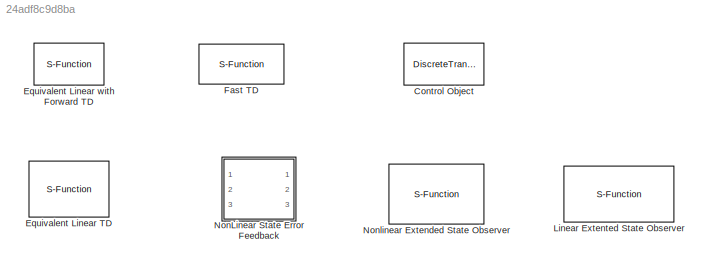
MODEL slx_24adf8c9d8ba
KIND model
CONFIG AbsTol = auto
CONFIG EnableMultiTasking = off
CONFIG FixedStep = auto
CONFIG MaxStep = auto
CONFIG MinStep = auto
CONFIG RelTol = 1e-3
CONFIG SampleTimeConstraint = Unconstrained
CONFIG Solver = VariableStepAuto
CONFIG SolverName = VariableStepAuto
CONFIG StartTime = 0.0
CONFIG StopTime = 10.0
BLOCK [DiscreteTransferFcn] Control Object
  Denominator = [ 1.0000   -0.9990]
  InputPortMap = u0
  Numerator = [0    0.03357]
  Ports = [1, 1]
BLOCK [S-Function] Equivalent Linear TD
  EnableBusSupport = off
  FunctionName = ELTD
  Parameters = 1,2,4
  Ports = [1, 1]
  SFcnIsStateOwnerBlock = off
  SFunctionDeploymentMode = off
BLOCK [S-Function] Equivalent Linear with Forward TD
  EnableBusSupport = off
  FunctionName = ELTD_F
  Parameters = 1,1,2,3
  Ports = [1, 1]
  SFcnIsStateOwnerBlock = off
  SFunctionDeploymentMode = off
BLOCK [S-Function] Fast TD
  EnableBusSupport = off
  FunctionName = FTD
  Parameters = 1E-3,1E-2,1000
  Ports = [1, 1]
  SFcnIsStateOwnerBlock = off
  SFunctionDeploymentMode = off
BLOCK [S-Function] Linear Extented State Observer
  EnableBusSupport = off
  FunctionName = LESO
  Ports = [1, 1]
  SFcnIsStateOwnerBlock = off
  SFunctionDeploymentMode = off
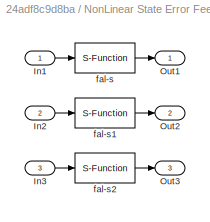
BLOCK [SubSystem] NonLinear State Error Feedback
  Ports = [3, 3]
  RequestExecContextInheritance = off
BLOCK [Inport] NonLinear State Error Feedback/In1
  IconDisplay = Port number
BLOCK [Inport] NonLinear State Error Feedback/In2
  IconDisplay = Port number
  Port = 2
BLOCK [Inport] NonLinear State Error Feedback/In3
  IconDisplay = Port number
  Port = 3
BLOCK [Outport] NonLinear State Error Feedback/Out1
  IconDisplay = Port number
BLOCK [Outport] NonLinear State Error Feedback/Out2
  IconDisplay = Port number
  Port = 2
BLOCK [Outport] NonLinear State Error Feedback/Out3
  IconDisplay = Port number
  Port = 3
BLOCK [S-Function] NonLinear State Error Feedback/fal-s
  EnableBusSupport = off
  FunctionName = fal_s
  Parameters = .5,0.5
  Ports = [1, 1]
  SFcnIsStateOwnerBlock = off
  SFunctionDeploymentMode = off
BLOCK [S-Function] NonLinear State Error Feedback/fal-s1
  EnableBusSupport = off
  FunctionName = fal_s
  Parameters = .5,0.5
  Ports = [1, 1]
  SFcnIsStateOwnerBlock = off
  SFunctionDeploymentMode = off
BLOCK [S-Function] NonLinear State Error Feedback/fal-s2
  EnableBusSupport = off
  FunctionName = fal_s
  Parameters = .5,0.5
  Ports = [1, 1]
  SFcnIsStateOwnerBlock = off
  SFunctionDeploymentMode = off
BLOCK [S-Function] Nonlinear Extended State Observer
  EnableBusSupport = off
  FunctionName = NLESO
  Parameters = 0.1,0.5,10,100,500,50
  Ports = [1, 1]
  SFcnIsStateOwnerBlock = off
  SFunctionDeploymentMode = off
LINE NonLinear State Error Feedback/In1:1 -> NonLinear State Error Feedback/fal-s:1
LINE NonLinear State Error Feedback/In2:1 -> NonLinear State Error Feedback/fal-s1:1
LINE NonLinear State Error Feedback/In3:1 -> NonLinear State Error Feedback/fal-s2:1
LINE NonLinear State Error Feedback/fal-s1:1 -> NonLinear State Error Feedback/Out2:1
LINE NonLinear State Error Feedback/fal-s2:1 -> NonLinear State Error Feedback/Out3:1
LINE NonLinear State Error Feedback/fal-s:1 -> NonLinear State Error Feedback/Out1:1
